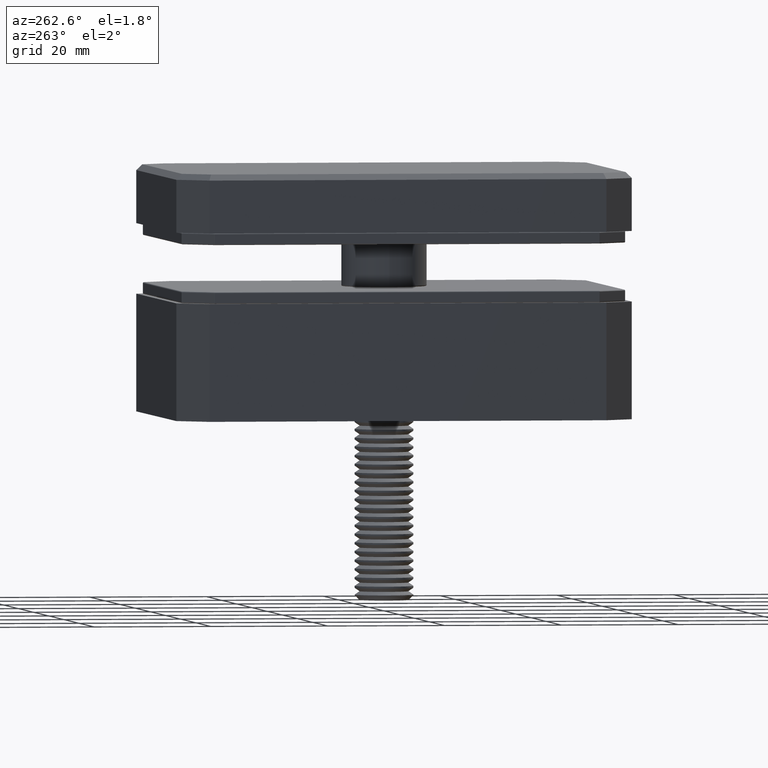
[diagram: clean part render]
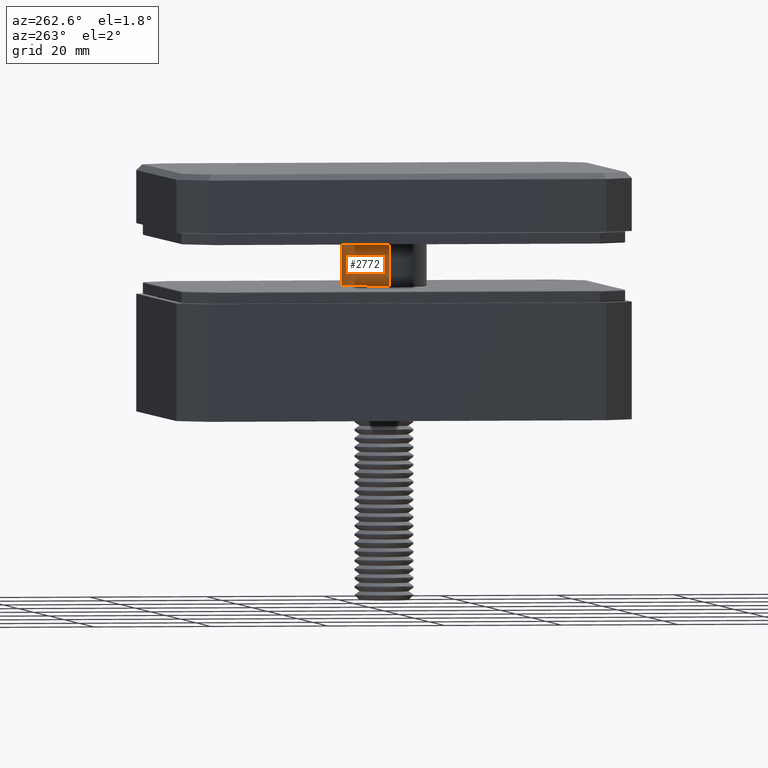
[diagram: same view with one face highlighted and labeled with its STEP entity id]
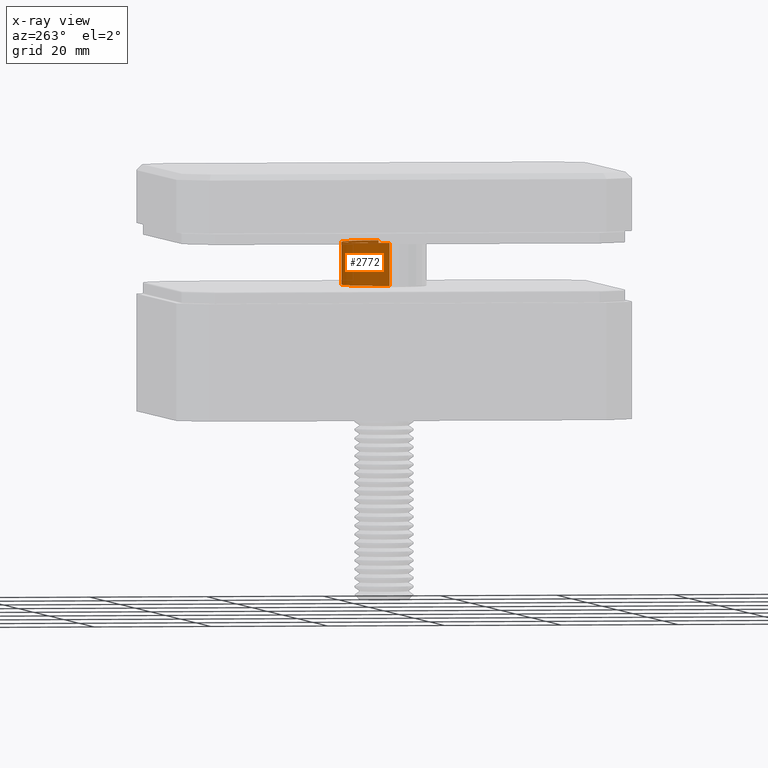
[diagram: x-ray of the same camera — body ghosted, the highlighted face saturated]
A machine part, auxiliary view. The second image highlights one B-rep face of the part: STEP entity #2772.
The next image is the same camera in x-ray: the body ghosted, the highlighted face saturated — about 7% of this face is hidden behind the body in this view.
In plain terms, the highlighted cylindrical surface (partial cylindrical patch) has radius 7.25 mm, axis along (0, -0, 1).
Its self-contained STEP definition (entity closure, byte-faithful):
#245 = CARTESIAN_POINT ( 'NONE',  ( 0.000000000000000000, 0.000000000000000000, 10.00000000000000000 ) ) ;
#2025 = DIRECTION ( 'NONE',  ( -0.000000000000000000, -0.000000000000000000, 1.000000000000000000 ) ) ;
#2132 = CARTESIAN_POINT ( 'NONE',  ( 0.000000000000000000, 0.000000000000000000, 2.499999999999988454 ) ) ;
#2772 = ADVANCED_FACE ( 'NONE', ( #23277 ), #28867, .T. ) ;
#3407 = VECTOR ( 'NONE', #5925, 1000.000000000000000 ) ;
#3548 = EDGE_CURVE ( 'NONE', #10466, #26914, #11620, .T. ) ;
#5267 = LINE ( 'NONE', #8438, #3407 ) ;
#5799 = ORIENTED_EDGE ( 'NONE', *, *, #25019, .T. ) ;
#5925 = DIRECTION ( 'NONE',  ( -0.000000000000000000, -0.000000000000000000, -1.000000000000000000 ) ) ;
#6200 = VERTEX_POINT ( 'NONE', #27541 ) ;
#7045 = DIRECTION ( 'NONE',  ( -1.000000000000000000, 0.000000000000000000, 0.000000000000000000 ) ) ;
#8438 = CARTESIAN_POINT ( 'NONE',  ( -7.250000000000000000, 0.000000000000000000, 10.00000000000000000 ) ) ;
#8622 = ORIENTED_EDGE ( 'NONE', *, *, #11148, .F. ) ;
#8664 = CARTESIAN_POINT ( 'NONE',  ( -7.250000000000000000, 0.000000000000000000, 2.499999999999988454 ) ) ;
#10466 = VERTEX_POINT ( 'NONE', #26318 ) ;
#10701 = DIRECTION ( 'NONE',  ( -0.000000000000000000, -0.000000000000000000, -1.000000000000000000 ) ) ;
#11148 = EDGE_CURVE ( 'NONE', #6200, #21429, #5267, .T. ) ;
#11620 = LINE ( 'NONE', #26837, #13878 ) ;
#13878 = VECTOR ( 'NONE', #10701, 1000.000000000000000 ) ;
#14072 = ORIENTED_EDGE ( 'NONE', *, *, #27397, .T. ) ;
#16865 = CIRCLE ( 'NONE', #26355, 7.250000000000000000 ) ;
#17294 = AXIS2_PLACEMENT_3D ( 'NONE', #21556, #26569, #29058 ) ;
#17953 = EDGE_LOOP ( 'NONE', ( #5799, #21498, #14072, #8622 ) ) ;
#19101 = DIRECTION ( 'NONE',  ( -0.000000000000000000, -0.000000000000000000, -1.000000000000000000 ) ) ;
#21429 = VERTEX_POINT ( 'NONE', #8664 ) ;
#21498 = ORIENTED_EDGE ( 'NONE', *, *, #3548, .T. ) ;
#21556 = CARTESIAN_POINT ( 'NONE',  ( 0.000000000000000000, 0.000000000000000000, 9.799999999999998934 ) ) ;
#22276 = AXIS2_PLACEMENT_3D ( 'NONE', #245, #19101, #7045 ) ;
#23277 = FACE_OUTER_BOUND ( 'NONE', #17953, .T. ) ;
#25019 = EDGE_CURVE ( 'NONE', #6200, #10466, #30816, .T. ) ;
#26318 = CARTESIAN_POINT ( 'NONE',  ( 7.250000000000000000, 8.878689293818310074E-16, 9.799999999999998934 ) ) ;
#26355 = AXIS2_PLACEMENT_3D ( 'NONE', #2132, #2025, #28305 ) ;
#26569 = DIRECTION ( 'NONE',  ( -0.000000000000000000, -0.000000000000000000, -1.000000000000000000 ) ) ;
#26837 = CARTESIAN_POINT ( 'NONE',  ( 7.250000000000000000, 8.878689293818310074E-16, 10.00000000000000000 ) ) ;
#26914 = VERTEX_POINT ( 'NONE', #30528 ) ;
#27397 = EDGE_CURVE ( 'NONE', #26914, #21429, #16865, .T. ) ;
#27541 = CARTESIAN_POINT ( 'NONE',  ( -7.250000000000000000, 0.000000000000000000, 9.799999999999998934 ) ) ;
#28305 = DIRECTION ( 'NONE',  ( 1.000000000000000000, 0.000000000000000000, 0.000000000000000000 ) ) ;
#28867 = CYLINDRICAL_SURFACE ( 'NONE', #22276, 7.250000000000000000 ) ;
#29058 = DIRECTION ( 'NONE',  ( 1.000000000000000000, 0.000000000000000000, 0.000000000000000000 ) ) ;
#30528 = CARTESIAN_POINT ( 'NONE',  ( 7.250000000000000000, 8.878689293818310074E-16, 2.499999999999988454 ) ) ;
#30816 = CIRCLE ( 'NONE', #17294, 7.250000000000000000 ) ;